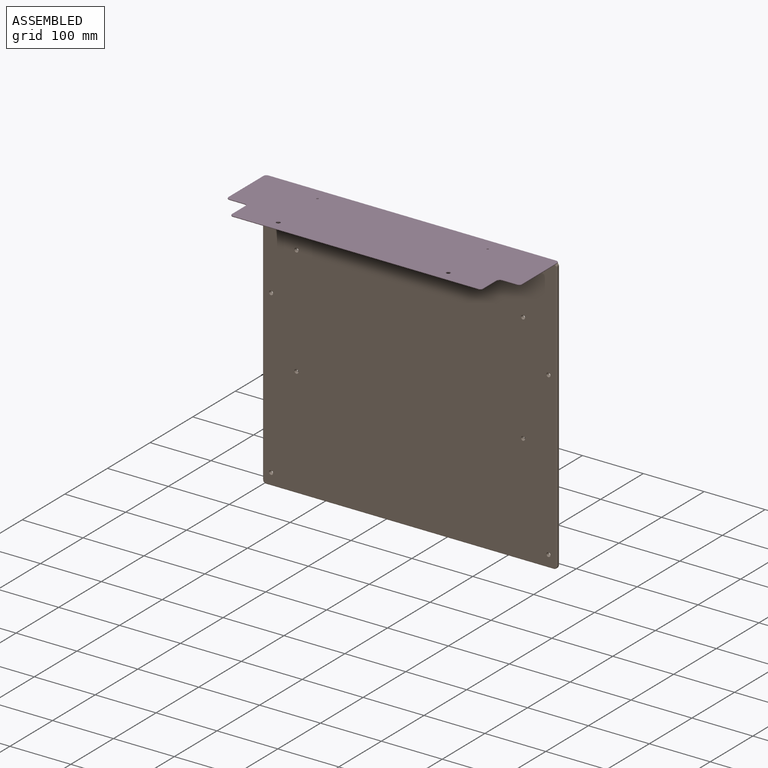
[diagram: assembled view]
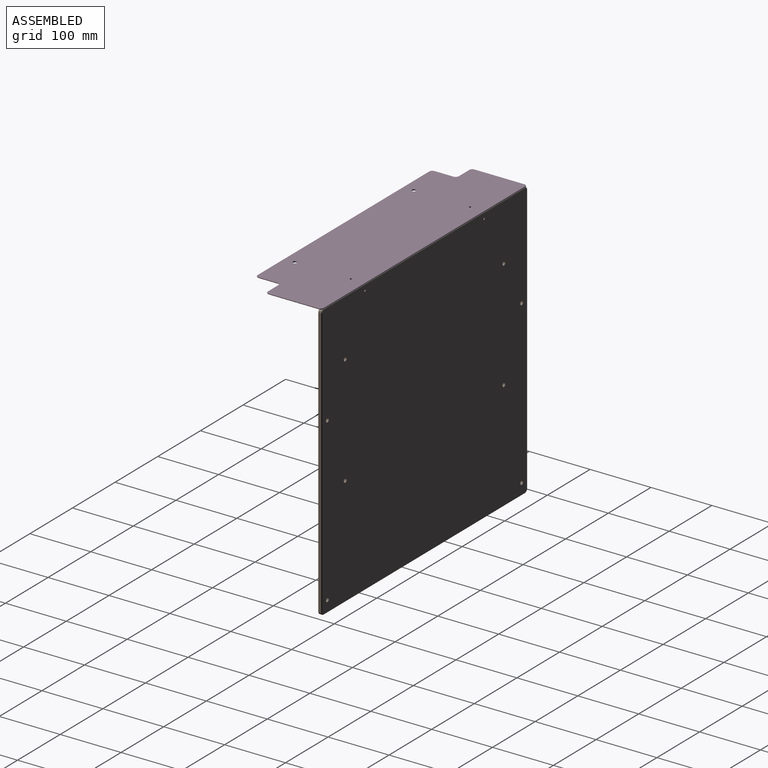
[diagram: assembled view, second angle]
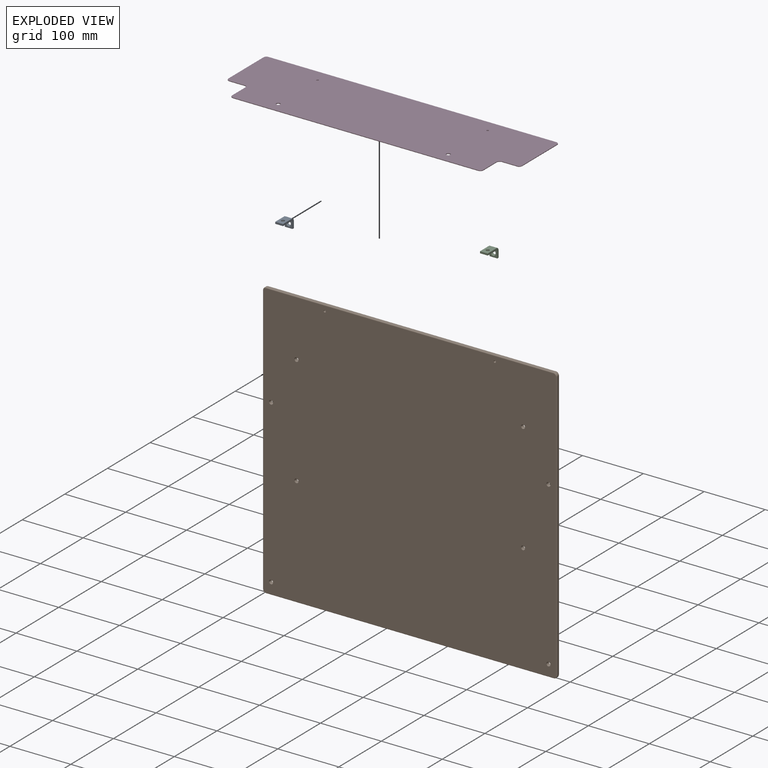
[diagram: exploded view]
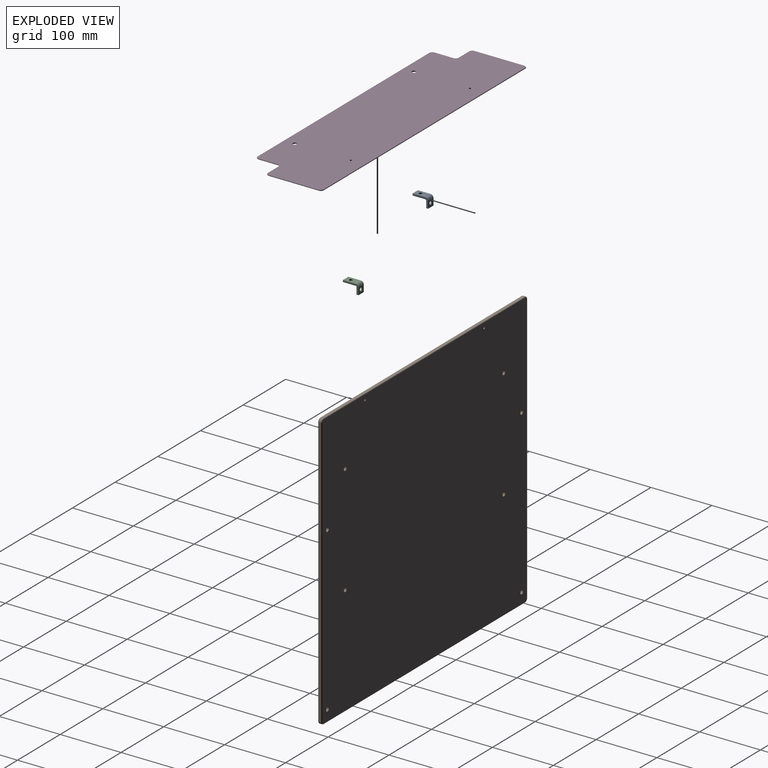
[diagram: exploded view, second angle]
ASSEMBLY  parts=4 mates=7
PART A: 14 faces, bbox 25.4x15.9x12.7 mm
  f0: plane 20.83x12.7mm, normal (0,-1,0), area 208.7mm2, adj f2,f7,f8,f9,f13
  f1: plane 20.83x12.7mm, normal (0,1,0), area 240mm2, adj f2,f3,f8,f9,f11
  f2: plane 12.7x3.05mm, normal (1,0,0), area 38.7mm2, adj f0,f1,f8,f9
  f3: cylinder r=4.57mm len=12.7mm, axis (0,0,-1), area 91.2mm2, adj f1,f4,f8,f9
  f4: plane 12.7x11.3mm, normal (-1,0,0), area 119mm2, adj f3,f5,f8,f9,f10
  f5: plane 12.7x3.05mm, normal (0,-1,0), area 38.7mm2, adj f4,f6,f8,f9
  f6: plane 12.7x11.3mm, normal (1,0,0), area 87.7mm2, adj f5,f7,f8,f9,f12
  f7: cylinder r=1.52mm len=12.7mm, axis (0,0,-1), area 30.4mm2, adj f0,f6,f8,f9
  f8: plane 25.4x15.88mm, normal (0,0,1), area 112.5mm2, adj f0,f1,f2,f3,f4,f5,f6,f7
  f9: plane 25.4x15.88mm, normal (0,0,-1), area 112.5mm2, adj f0,f1,f2,f3,f4,f5,f6,f7
  f10: cylinder r=2.79mm len=5.59mm, axis (1,0,0), area 31.8mm2, adj f4,f12
  f11: cylinder r=2.79mm len=5.59mm, axis (0,1,0), area 31.8mm2, adj f1,f13
  f12: cone r=4.22mm half-angle=49deg, axis (1,0,0), area 41.5mm2, adj f6,f10
  f13: cone r=4.22mm half-angle=49deg, axis (0,-1,0), area 41.5mm2, adj f0,f11
PART B: 36 faces, bbox 483.4x6.4x454.9 mm
  f0: plane 472.44x3.81mm, normal (0,0,1), area 1800mm2, adj f16,f19,f23,f31
  f1: plane 443.87x3.81mm, normal (-1,0,0), area 1691.1mm2, adj f16,f17,f20,f28
  f2: plane 472.44x3.81mm, normal (0,0,-1), area 1800mm2, adj f17,f18,f24,f32
  f3: plane 443.87x3.81mm, normal (1,0,0), area 1691.1mm2, adj f18,f19,f27,f35
  f4: plane 480.06x451.49mm, normal (0,-1,0), area 216435mm2, adj f6,f7,f8,f9,f10,f11,f12,f13
  f5: plane 480.06x451.49mm, normal (0,1,0), area 216435mm2, adj f6,f7,f8,f9,f10,f11,f12,f13
  f6: cylinder r=3.3mm len=6.6mm, axis (0,1,0), area 131.7mm2, adj f4,f5
  f7: cylinder r=3.3mm len=6.6mm, axis (0,1,0), area 131.7mm2, adj f4,f5
  f8: cylinder r=3.3mm len=6.6mm, axis (0,1,0), area 131.7mm2, adj f4,f5
  f9: cylinder r=3.3mm len=6.6mm, axis (0,1,0), area 131.7mm2, adj f4,f5
  f10: cylinder r=3.3mm len=6.6mm, axis (0,-1,0), area 131.7mm2, adj f4,f5
  f11: cylinder r=3.3mm len=6.6mm, axis (0,-1,0), area 131.7mm2, adj f4,f5
  f12: cylinder r=3.3mm len=6.6mm, axis (0,-1,0), area 131.7mm2, adj f4,f5
  f13: cylinder r=3.3mm len=6.6mm, axis (0,-1,0), area 131.7mm2, adj f4,f5
  f14: cylinder r=1.73mm len=6.35mm, axis (0,-1,0), area 68.9mm2, adj f4,f5
  f15: cylinder r=1.73mm len=6.35mm, axis (0,-1,0), area 68.9mm2, adj f4,f5
  f16: cylinder r=5.08mm len=5.08mm, axis (0,-1,0), area 30.4mm2, adj f0,f1,f21,f29
  f17: cylinder r=5.08mm len=5.08mm, axis (0,1,0), area 30.4mm2, adj f1,f2,f22,f30
  f18: cylinder r=5.08mm len=5.08mm, axis (0,-1,0), area 30.4mm2, adj f2,f3,f26,f34
  f19: cylinder r=5.08mm len=5.08mm, axis (0,1,0), area 30.4mm2, adj f0,f3,f25,f33
  f20: cylinder r=1.27mm len=443.87mm, axis (0,0,1), area 885.5mm2, adj f1,f4,f21,f22
  f21: torus R=3.81mm, axis (0,-1,0), area 14.5mm2, adj f4,f16,f20,f23
  f22: torus R=3.81mm, axis (0,-1,0), area 14.5mm2, adj f4,f17,f20,f24
  f23: cylinder r=1.27mm len=472.44mm, axis (1,0,0), area 942.5mm2, adj f0,f4,f21,f25
  f24: cylinder r=1.27mm len=472.44mm, axis (-1,0,0), area 942.5mm2, adj f2,f4,f22,f26
  f25: torus R=3.81mm, axis (0,-1,0), area 14.5mm2, adj f4,f19,f23,f27
  f26: torus R=3.81mm, axis (0,-1,0), area 14.5mm2, adj f4,f18,f24,f27
  f27: cylinder r=1.27mm len=443.87mm, axis (0,0,-1), area 885.5mm2, adj f3,f4,f25,f26
  f28: cylinder r=1.27mm len=443.87mm, axis (0,0,-1), area 885.5mm2, adj f1,f5,f29,f30
  f29: torus R=3.81mm, axis (0,-1,0), area 14.5mm2, adj f5,f16,f28,f31
  f30: torus R=3.81mm, axis (0,-1,0), area 14.5mm2, adj f5,f17,f28,f32
  f31: cylinder r=1.27mm len=472.44mm, axis (-1,0,0), area 942.5mm2, adj f0,f5,f29,f33
  f32: cylinder r=1.27mm len=472.44mm, axis (1,0,0), area 942.5mm2, adj f2,f5,f30,f34
  f33: torus R=3.81mm, axis (0,-1,0), area 14.5mm2, adj f5,f19,f31,f35
  f34: torus R=3.81mm, axis (0,-1,0), area 14.5mm2, adj f5,f18,f32,f35
  f35: cylinder r=1.27mm len=443.87mm, axis (0,0,1), area 885.5mm2, adj f3,f5,f33,f34
PART C: same geometry as A
PART D: 54 faces, bbox 483.4x134.2x1.6 mm
  f0: plane 472.44x0.57mm, normal (0,1,0), area 270mm2, adj f14,f21,f26,f42
  f1: plane 81.92x0.57mm, normal (-1,0,0), area 46.8mm2, adj f14,f15,f22,f38
  f2: plane 24.77x0.57mm, normal (0,-1,0), area 14.2mm2, adj f15,f16,f25,f41
  f3: plane 31.12x0.57mm, normal (-1,0,0), area 17.8mm2, adj f16,f17,f29,f45
  f4: plane 402.59x0.57mm, normal (0,-1,0), area 230.1mm2, adj f17,f18,f33,f49
  f5: plane 31.12x0.57mm, normal (1,0,0), area 17.8mm2, adj f18,f19,f37,f53
  f6: plane 24.77x0.57mm, normal (0,-1,0), area 14.2mm2, adj f19,f20,f34,f50
  f7: plane 81.92x0.57mm, normal (1,0,0), area 46.8mm2, adj f20,f21,f30,f46
  f8: plane 481.58x132.33mm, normal (0,0,1), area 60746.2mm2, adj f10,f11,f12,f13,f22,f23,f24,f25
  f9: plane 481.58x132.33mm, normal (0,0,-1), area 60746.2mm2, adj f10,f11,f12,f13,f38,f39,f40,f41
  f10: cylinder r=3.3mm len=6.6mm, axis (0,0,1), area 32.9mm2, adj f8,f9
  f11: cylinder r=3.3mm len=6.6mm, axis (0,0,1), area 32.9mm2, adj f8,f9
  f12: cylinder r=1.73mm len=3.45mm, axis (0,0,1), area 17.2mm2, adj f8,f9
  f13: cylinder r=1.73mm len=3.45mm, axis (0,0,1), area 17.2mm2, adj f8,f9
  f14: cylinder r=5.08mm len=5.08mm, axis (0,0,1), area 4.6mm2, adj f0,f1,f24,f40
  f15: cylinder r=5.08mm len=5.08mm, axis (0,0,-1), area 4.6mm2, adj f1,f2,f23,f39
  f16: cylinder r=5.08mm len=5.08mm, axis (0,0,-1), area 4.6mm2, adj f2,f3,f27,f43
  f17: cylinder r=5.08mm len=5.08mm, axis (0,0,1), area 4.6mm2, adj f3,f4,f31,f47
  f18: cylinder r=5.08mm len=5.08mm, axis (0,0,-1), area 4.6mm2, adj f4,f5,f35,f51
  f19: cylinder r=5.08mm len=5.08mm, axis (0,0,-1), area 4.6mm2, adj f5,f6,f36,f52
  f20: cylinder r=5.08mm len=5.08mm, axis (0,0,-1), area 4.6mm2, adj f6,f7,f32,f48
  f21: cylinder r=5.08mm len=5.08mm, axis (0,0,-1), area 4.6mm2, adj f0,f7,f28,f44
  f22: cylinder r=0.51mm len=81.92mm, axis (0,1,0), area 65.4mm2, adj f1,f8,f23,f24
  f23: torus R=4.57mm, axis (0,0,1), area 6.1mm2, adj f8,f15,f22,f25
  f24: torus R=4.57mm, axis (0,0,1), area 6.1mm2, adj f8,f14,f22,f26
  f25: cylinder r=0.51mm len=24.77mm, axis (-1,0,0), area 19.8mm2, adj f2,f8,f23,f27
  f26: cylinder r=0.51mm len=472.44mm, axis (1,0,0), area 377mm2, adj f0,f8,f24,f28
  f27: torus R=5.59mm, axis (0,0,1), area 6.6mm2, adj f8,f16,f25,f29
  f28: torus R=4.57mm, axis (0,0,1), area 6.1mm2, adj f8,f21,f26,f30
  f29: cylinder r=0.51mm len=31.12mm, axis (0,1,0), area 24.8mm2, adj f3,f8,f27,f31
  f30: cylinder r=0.51mm len=81.92mm, axis (0,-1,0), area 65.4mm2, adj f7,f8,f28,f32
  f31: torus R=4.57mm, axis (0,0,1), area 6.1mm2, adj f8,f17,f29,f33
  f32: torus R=4.57mm, axis (0,0,1), area 6.1mm2, adj f8,f20,f30,f34
  f33: cylinder r=0.51mm len=402.59mm, axis (-1,0,0), area 321.3mm2, adj f4,f8,f31,f35
  f34: cylinder r=0.51mm len=24.77mm, axis (-1,0,0), area 19.8mm2, adj f6,f8,f32,f36
  f35: torus R=4.57mm, axis (0,0,1), area 6.1mm2, adj f8,f18,f33,f37
  f36: torus R=5.59mm, axis (0,0,1), area 6.6mm2, adj f8,f19,f34,f37
  f37: cylinder r=0.51mm len=31.12mm, axis (0,-1,0), area 24.8mm2, adj f5,f8,f35,f36
  f38: cylinder r=0.51mm len=81.92mm, axis (0,-1,0), area 65.4mm2, adj f1,f9,f39,f40
  f39: torus R=4.57mm, axis (0,0,1), area 6.1mm2, adj f9,f15,f38,f41
  f40: torus R=4.57mm, axis (0,0,1), area 6.1mm2, adj f9,f14,f38,f42
  f41: cylinder r=0.51mm len=24.77mm, axis (1,0,0), area 19.8mm2, adj f2,f9,f39,f43
  f42: cylinder r=0.51mm len=472.44mm, axis (-1,0,0), area 377mm2, adj f0,f9,f40,f44
  f43: torus R=5.59mm, axis (0,0,1), area 6.6mm2, adj f9,f16,f41,f45
  f44: torus R=4.57mm, axis (0,0,1), area 6.1mm2, adj f9,f21,f42,f46
  f45: cylinder r=0.51mm len=31.12mm, axis (0,-1,0), area 24.8mm2, adj f3,f9,f43,f47
  f46: cylinder r=0.51mm len=81.92mm, axis (0,1,0), area 65.4mm2, adj f7,f9,f44,f48
  f47: torus R=4.57mm, axis (0,0,1), area 6.1mm2, adj f9,f17,f45,f49
  f48: torus R=4.57mm, axis (0,0,1), area 6.1mm2, adj f9,f20,f46,f50
  f49: cylinder r=0.51mm len=402.59mm, axis (1,0,0), area 321.3mm2, adj f4,f9,f47,f51
  f50: cylinder r=0.51mm len=24.77mm, axis (1,0,0), area 19.8mm2, adj f6,f9,f48,f52
  f51: torus R=4.57mm, axis (0,0,1), area 6.1mm2, adj f9,f18,f49,f53
  f52: torus R=5.59mm, axis (0,0,1), area 6.6mm2, adj f9,f19,f50,f53
  f53: cylinder r=0.51mm len=31.12mm, axis (0,1,0), area 24.8mm2, adj f5,f9,f51,f52
PLACE A rot(axis=(0.58,-0.58,-0.58),120deg) t=(-187.98,78.17,96.18)mm
PLACE B t=(-213.13,84.68,-120.37)mm
PLACE C rot(axis=(0.58,-0.58,-0.58),120deg) t=(91.42,78.17,96.18)mm
PLACE D t=(-45.24,195.79,96.18)mm
MATE cylindrical A.f11 <-> D.f13  axis (0,0,1) through (-187.98,61.66,96.18)mm
MATE cylindrical C.f11 <-> D.f12  axis (0,0,1) through (91.42,61.66,96.18)mm
MATE planar D.f9 <-> B.f0  axis (0,0,-1) through (-48.28,20.21,96.18)mm
MATE cylindrical C.f12 <-> B.f14  axis (0,1,0) through (91.42,78.17,86.65)mm
MATE cylindrical A.f12 <-> B.f15  axis (0,1,0) through (-187.98,78.17,86.65)mm
MATE planar D.f0 <-> B.f5  axis (0,1,0) through (-48.28,84.68,96.97)mm
MATE planar D.f7 <-> B.f3  axis (1,0,0) through (193.02,38.64,96.97)mm
